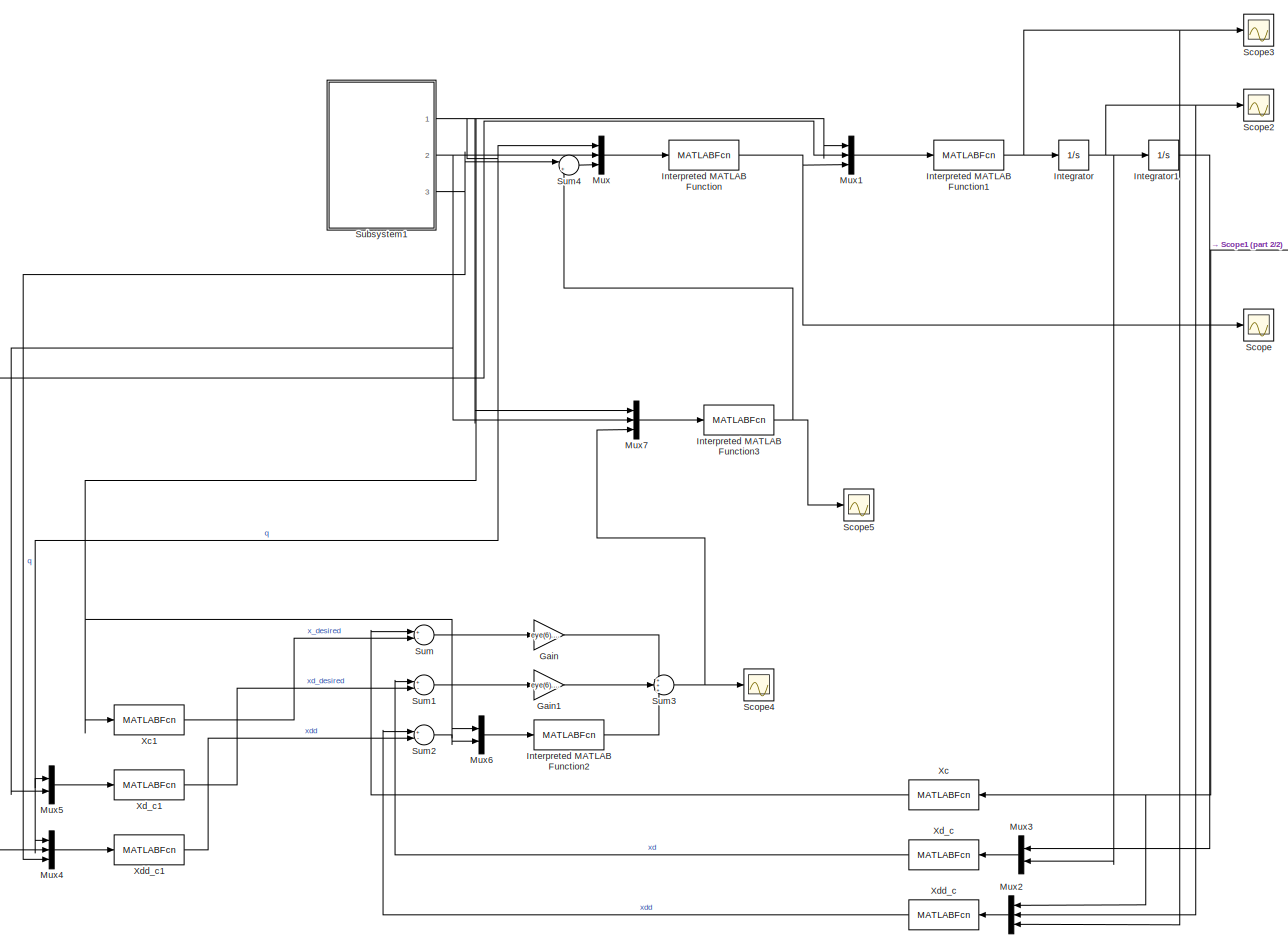
[diagram: root canvas - part 1/2, most of the canvas]
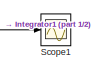
[diagram: root canvas - part 2/2, top right region]
MODEL slx_8cbd1608ab45
KIND model
CONFIG AbsTol = auto
CONFIG EnableMultiTasking = off
CONFIG FixedStep = auto
CONFIG MaxStep = auto
CONFIG MinStep = auto
CONFIG RelTol = 1e-3
CONFIG SampleTimeConstraint = Unconstrained
CONFIG Solver = VariableStepAuto
CONFIG SolverName = VariableStepAuto
CONFIG StartTime = 0.0
CONFIG StopTime = 2
BLOCK [Gain] Gain
  Gain = eye(6).*(10^2)
  Multiplication = Matrix(K*u) (u vector)
  OutDataTypeStr = Inherit: Inherit via internal rule
  ParamDataTypeStr = Inherit: Inherit via internal rule
  SaturateOnIntegerOverflow = off
BLOCK [Gain] Gain1
  Gain = eye(6).*(2*10)
  Multiplication = Matrix(K*u) (u vector)
  OutDataTypeStr = Inherit: Inherit via internal rule
  ParamDataTypeStr = Inherit: Inherit via internal rule
  SaturateOnIntegerOverflow = off
BLOCK [Integrator] Integrator
  Ports = [1, 1]
BLOCK [Integrator] Integrator1
  Ports = [1, 1]
BLOCK [MATLABFcn] Interpreted MATLAB Function
  MATLABFcn = test
  Ports = [1, 1]
BLOCK [MATLABFcn] Interpreted MATLAB Function1
  MATLABFcn = test2
  Output1D = off
  Ports = [1, 1]
BLOCK [MATLABFcn] Interpreted MATLAB Function2
  MATLABFcn = testInertiaImp
  Output1D = off
  Ports = [1, 1]
BLOCK [MATLABFcn] Interpreted MATLAB Function3
  MATLABFcn = testAq
  Ports = [1, 1]
BLOCK [Mux] Mux
  DisplayOption = bar
  Inputs = 3
  Ports = [3, 1]
BLOCK [Mux] Mux1
  DisplayOption = bar
  Inputs = 3
  Ports = [3, 1]
BLOCK [Mux] Mux2
  DisplayOption = bar
  Inputs = 3
  Ports = [3, 1]
BLOCK [Mux] Mux3
  DisplayOption = bar
  Inputs = 2
  Ports = [2, 1]
BLOCK [Mux] Mux4
  DisplayOption = bar
  Inputs = 3
  Ports = [3, 1]
BLOCK [Mux] Mux5
  DisplayOption = bar
  Inputs = 2
  Ports = [2, 1]
BLOCK [Mux] Mux6
  DisplayOption = bar
  Inputs = 2
  Ports = [2, 1]
BLOCK [Mux] Mux7
  DisplayOption = bar
  Inputs = 3
  Ports = [3, 1]
BLOCK [Scope] Scope
  Floating = off
  NumInputPorts = 1
  Ports = [1]
  ScopeSpecificationString = Simulink.scopes.TimeScopeBlockCfg('CurrentConfiguration', extmgr.ConfigurationSet(extmgr.Configuration('Core','General UI',true),extmgr.Configuration('Core','Source UI',true),extmgr.Configuration('Sources','WiredSimulink',true),extmgr.Configuration('Visuals','Time Domain',true,'SerializedDisplays',{struct('MinYLimReal','-1.9008','MaxYLimReal','-0.20218','YLabelReal','','MinYLimMag','0.00000','MaxY...<+1379ch>
BLOCK [Scope] Scope1
  Floating = off
  NumInputPorts = 1
  Ports = [1]
  ScopeSpecificationString = Simulink.scopes.TimeScopeBlockCfg('CurrentConfiguration', extmgr.ConfigurationSet(extmgr.Configuration('Core','General UI',true),extmgr.Configuration('Core','Source UI',true),extmgr.Configuration('Sources','WiredSimulink',true,'DataLoggingVariableName','ScopeData1'),extmgr.Configuration('Visuals','Time Domain',true,'SerializedDisplays',{struct('MinYLimReal','-0.0000000065','MaxYLimReal','0.0000000...<+1428ch>
BLOCK [Scope] Scope2
  Floating = off
  NumInputPorts = 1
  Ports = [1]
  ScopeSpecificationString = Simulink.scopes.TimeScopeBlockCfg('CurrentConfiguration', extmgr.ConfigurationSet(extmgr.Configuration('Core','General UI',true),extmgr.Configuration('Core','Source UI',true),extmgr.Configuration('Sources','WiredSimulink',true,'DataLoggingVariableName','ScopeData2'),extmgr.Configuration('Visuals','Time Domain',true,'SerializedDisplays',{struct('MinYLimReal','-0.000048','MaxYLimReal','0.000005','YL...<+1394ch>
BLOCK [Scope] Scope3
  Floating = off
  NumInputPorts = 1
  Ports = [1]
  ScopeSpecificationString = Simulink.scopes.TimeScopeBlockCfg('CurrentConfiguration', extmgr.ConfigurationSet(extmgr.Configuration('Core','General UI',true),extmgr.Configuration('Core','Source UI',true),extmgr.Configuration('Sources','WiredSimulink',true,'DataLoggingVariableName','ScopeData3'),extmgr.Configuration('Visuals','Time Domain',true,'SerializedDisplays',{struct('MinYLimReal','-0.17151','MaxYLimReal','-0.12525','YLa...<+1424ch>
BLOCK [Scope] Scope4
  Floating = off
  NumInputPorts = 1
  Ports = [1]
  ScopeSpecificationString = Simulink.scopes.TimeScopeBlockCfg('CurrentConfiguration', extmgr.ConfigurationSet(extmgr.Configuration('Core','General UI',true),extmgr.Configuration('Core','Source UI',true),extmgr.Configuration('Sources','WiredSimulink',true,'DataLoggingVariableName','ScopeData4'),extmgr.Configuration('Visuals','Time Domain',true,'SerializedDisplays',{struct('MinYLimReal','-405.69824','MaxYLimReal','887.81309','...<+1424ch>
BLOCK [Scope] Scope5
  Floating = off
  NumInputPorts = 1
  Ports = [1]
  ScopeSpecificationString = Simulink.scopes.TimeScopeBlockCfg('CurrentConfiguration', extmgr.ConfigurationSet(extmgr.Configuration('Core','General UI',true),extmgr.Configuration('Core','Source UI',true),extmgr.Configuration('Sources','WiredSimulink',true,'DataLoggingVariableName','ScopeData5'),extmgr.Configuration('Visuals','Time Domain',true,'SerializedDisplays',{struct('MinYLimReal','-1.00000','MaxYLimReal','1.00000','YLab...<+1449ch>
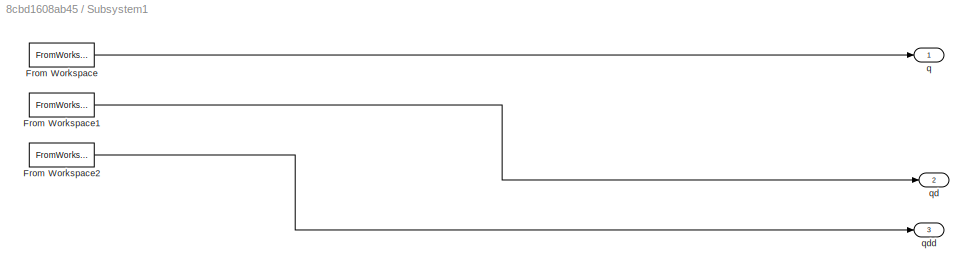
BLOCK [SubSystem] Subsystem1
  Ports = [0, 3]
  RequestExecContextInheritance = off
BLOCK [FromWorkspace] Subsystem1/From Workspace
  SampleTime = 0
  VariableName = qc
  ZeroCross = on
BLOCK [FromWorkspace] Subsystem1/From Workspace1
  SampleTime = 0
  VariableName = qcdot
  ZeroCross = on
BLOCK [FromWorkspace] Subsystem1/From Workspace2
  SampleTime = 0
  VariableName = qcddot
  ZeroCross = on
BLOCK [Outport] Subsystem1/q
  IconDisplay = Port number
BLOCK [Outport] Subsystem1/qd
  IconDisplay = Port number
  Port = 2
BLOCK [Outport] Subsystem1/qdd
  IconDisplay = Port number
  Port = 3
BLOCK [Sum] Sum
  InputSameDT = off
  Inputs = +-
  OutDataTypeStr = Inherit: Inherit via internal rule
  Ports = [2, 1]
  SaturateOnIntegerOverflow = off
BLOCK [Sum] Sum1
  InputSameDT = off
  Inputs = +-
  OutDataTypeStr = Inherit: Inherit via internal rule
  Ports = [2, 1]
  SaturateOnIntegerOverflow = off
BLOCK [Sum] Sum2
  InputSameDT = off
  Inputs = +-
  OutDataTypeStr = Inherit: Inherit via internal rule
  Ports = [2, 1]
  SaturateOnIntegerOverflow = off
BLOCK [Sum] Sum3
  IconShape = round
  InputSameDT = off
  Inputs = +++
  OutDataTypeStr = Inherit: Inherit via internal rule
  Ports = [3, 1]
  SaturateOnIntegerOverflow = off
BLOCK [Sum] Sum4
  IconShape = round
  InputSameDT = off
  Inputs = |++
  OutDataTypeStr = Inherit: Inherit via internal rule
  Ports = [2, 1]
  SaturateOnIntegerOverflow = off
BLOCK [MATLABFcn] Xc
  MATLABFcn = testX
  Ports = [1, 1]
BLOCK [MATLABFcn] Xc1
  MATLABFcn = testX
  Ports = [1, 1]
BLOCK [MATLABFcn] Xd_c
  MATLABFcn = testXd
  Ports = [1, 1]
BLOCK [MATLABFcn] Xd_c1
  MATLABFcn = testXd
  Ports = [1, 1]
BLOCK [MATLABFcn] Xdd_c
  MATLABFcn = testXdd
  Output1D = off
  Ports = [1, 1]
BLOCK [MATLABFcn] Xdd_c1
  MATLABFcn = testXdd
  Output1D = off
  Ports = [1, 1]
LINE Gain1:1 -> Sum3:2
LINE Gain:1 -> Sum3:1
NET Integrator1:1 -> Mux2:1, Mux3:1, Scope1:1, Xc:1
NET Integrator:1 -> Integrator1:1, Mux2:2, Mux3:2, Scope2:1
NET Interpreted MATLAB Function1:1 -> Integrator:1, Mux2:3, Scope3:1
LINE Interpreted MATLAB Function2:1 -> Sum3:3
NET Interpreted MATLAB Function3:1 -> Scope5:1, Sum4:2
NET Interpreted MATLAB Function:1 -> Mux1:3, Scope:1
LINE Mux1:1 -> Interpreted MATLAB Function1:1
LINE Mux2:1 -> Xdd_c:1
LINE Mux3:1 -> Xd_c:1
LINE Mux4:1 -> Xdd_c1:1
LINE Mux5:1 -> Xd_c1:1
LINE Mux6:1 -> Interpreted MATLAB Function2:1
LINE Mux7:1 -> Interpreted MATLAB Function3:1
LINE Mux:1 -> Interpreted MATLAB Function:1
LINE Subsystem1/From Workspace1:1 -> Subsystem1/qd:1
LINE Subsystem1/From Workspace2:1 -> Subsystem1/qdd:1
LINE Subsystem1/From Workspace:1 -> Subsystem1/q:1
NET Subsystem1:1 -> Mux1:1, Mux4:1, Mux5:1, Mux6:1, Mux7:1, Mux:1, Xc1:1
NET Subsystem1:2 -> Mux1:2, Mux4:2, Mux5:2, Mux7:2, Mux:2
NET Subsystem1:3 -> Mux4:3, Sum4:1
LINE Sum1:1 -> Gain1:1
LINE Sum2:1 -> Mux6:2
NET Sum3:1 -> Mux7:3, Scope4:1
LINE Sum4:1 -> Mux:3
LINE Sum:1 -> Gain:1
LINE Xc1:1 -> Sum:2
LINE Xc:1 -> Sum:1
LINE Xd_c1:1 -> Sum1:2
LINE Xd_c:1 -> Sum1:1
LINE Xdd_c1:1 -> Sum2:2
LINE Xdd_c:1 -> Sum2:1
note: NET lines group one-source signal fan-out (src -> all destinations, sorted); 1:1 wires keep LINE
